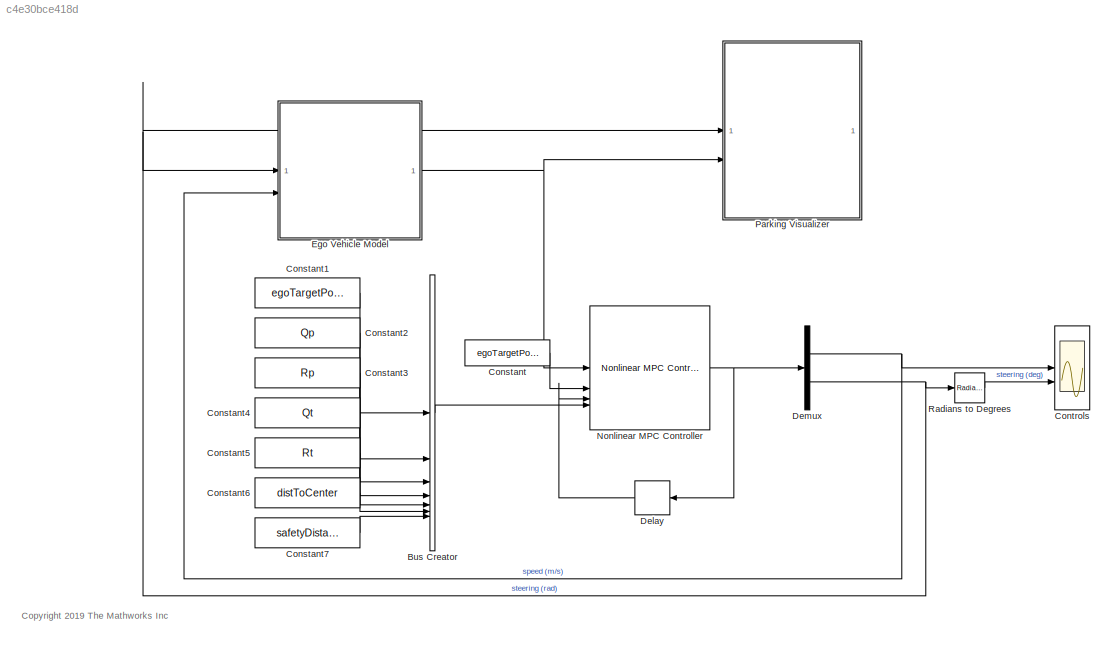
MODEL slx_c4e30bce418d
KIND model
CONFIG AbsTol = auto
CONFIG EnableMultiTasking = off
CONFIG FixedStep = auto
CONFIG MaxStep = auto
CONFIG MinStep = auto
CONFIG RelTol = 1e-3
CONFIG SampleTimeConstraint = Unconstrained
CONFIG SolverName = VariableStepAuto
CONFIG StartTime = 0.0
CONFIG StopTime = Duration
BLOCK [BusCreator] Bus Creator
  DisplayOption = bar
  InheritFromInputs = off
  Inputs = 7
  NonVirtualBus = on
  OutDataTypeStr = Bus: parasBusObject_1
BLOCK [Constant] Constant
  Value = egoTargetPose
  VectorParams1D = off
BLOCK [Constant] Constant1
  Value = egoTargetPose
  VectorParams1D = off
BLOCK [Constant] Constant2
  Value = Qp
  VectorParams1D = off
BLOCK [Constant] Constant3
  Value = Rp
  VectorParams1D = off
BLOCK [Constant] Constant4
  Value = Qt
  VectorParams1D = off
BLOCK [Constant] Constant5
  Value = Rt
  VectorParams1D = off
BLOCK [Constant] Constant6
  Value = distToCenter
  VectorParams1D = off
BLOCK [Constant] Constant7
  Value = safetyDistance
  VectorParams1D = off
BLOCK [Scope] Controls
  Floating = off
  NumInputPorts = 2
  ScopeSpecificationString = Simulink.scopes.TimeScopeBlockCfg('CurrentConfiguration', extmgr.ConfigurationSet(extmgr.Configuration('Core','General UI',true),extmgr.Configuration('Core','Source UI',true),extmgr.Configuration('Sources','WiredSimulink',true),extmgr.Configuration('Visuals','Time Domain',true,'SerializedDisplays',{struct('MinYLimReal','-2.35974','MaxYLimReal','1.23763','YLabelReal','','MinYLimMag','0.00000','MaxY...<+1976ch>
BLOCK [Delay] Delay
  DelayLength = 1
  InputPortMap = u0
BLOCK [Demux] Demux
  Outputs = [1 1]
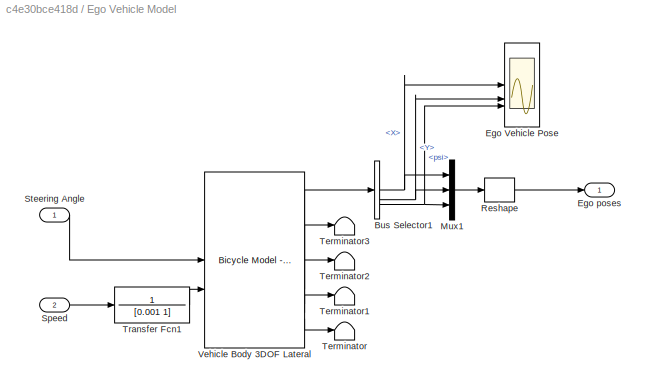
BLOCK [SubSystem] Ego Vehicle Model
BLOCK [BusSelector] Ego Vehicle Model/Bus Selector1
  OutputSignals = InertFrm.RearAxl.Disp.X,InertFrm.RearAxl.Disp.Y,InertFrm.Cg.Ang.psi
BLOCK [Scope] Ego Vehicle Model/Ego Vehicle Pose
  Floating = off
  NumInputPorts = 3
  ScopeSpecificationString = Simulink.scopes.TimeScopeBlockCfg('CurrentConfiguration', extmgr.ConfigurationSet(extmgr.Configuration('Core','General UI',true),extmgr.Configuration('Core','Source UI',true),extmgr.Configuration('Sources','WiredSimulink',true,'DataLoggingVariableName','ScopeData1'),extmgr.Configuration('Visuals','Time Domain',true,'SerializedDisplays',{struct('MinYLimReal','-2.41393','MaxYLimReal','8.04599','YLab...<+2757ch>
BLOCK [Outport] Ego Vehicle Model/Ego poses
BLOCK [Mux] Ego Vehicle Model/Mux1
  DisplayOption = bar
  Inputs = 3
BLOCK [Reshape] Ego Vehicle Model/Reshape
  OutputDimensionality = Customize
  OutputDimensions = [3,1]
BLOCK [Inport] Ego Vehicle Model/Speed
  Port = 2
BLOCK [Inport] Ego Vehicle Model/Steering Angle
BLOCK [Terminator] Ego Vehicle Model/Terminator
BLOCK [Terminator] Ego Vehicle Model/Terminator1
BLOCK [Terminator] Ego Vehicle Model/Terminator2
BLOCK [Terminator] Ego Vehicle Model/Terminator3
BLOCK [TransferFcn] Ego Vehicle Model/Transfer Fcn1
  Denominator = [0.001 1]
  Numerator = 1
BLOCK [Reference] Ego Vehicle Model/Vehicle Body 3DOF Lateral  REF=autolibshared/Bicycle Model - Velocity Input
  SourceBlock = autolibshared/Bicycle Model - Velocity Input
  SourceType = Vehicle Body 3DOF Lateral
BLOCK [Reference] Nonlinear MPC Controller  REF=mpclib/Nonlinear MPC Controller  (lib defined in mdl_ae329e0e0455)
  SCDEnableBlockLinearizationSpecification = on
  SourceBlock = mpclib/Nonlinear MPC Controller
  SourceType = NonlinearMPC
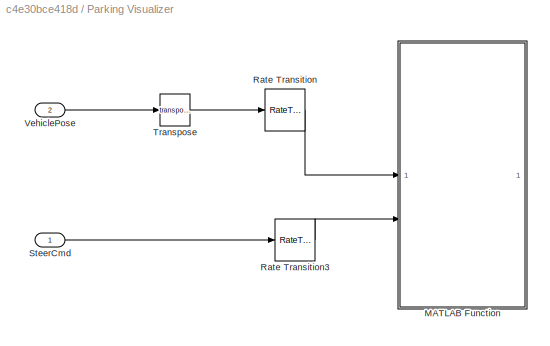
BLOCK [SubSystem] Parking Visualizer
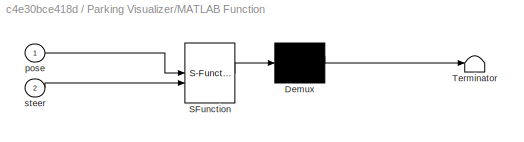
BLOCK [SubSystem] Parking Visualizer/MATLAB Function
  ErrorFcn = Stateflow.Translate.translate
  PermitHierarchicalResolution = ExplicitOnly
  SFBlockType = MATLAB Function
  TreatAsAtomicUnit = on
BLOCK [Demux] Parking Visualizer/MATLAB Function/ Demux 
  Outputs = 1
BLOCK [S-Function] Parking Visualizer/MATLAB Function/ SFunction 
  EnableBusSupport = off
  FunctionName = sf_sfun
  PortCounts = [2 1]
  SFcnIsStateOwnerBlock = off
  SFunctionDeploymentMode = off
  Tag = Stateflow S-Function 2
BLOCK [Terminator] Parking Visualizer/MATLAB Function/ Terminator 
BLOCK [Inport] Parking Visualizer/MATLAB Function/pose
BLOCK [Inport] Parking Visualizer/MATLAB Function/steer
  Port = 2
BLOCK [RateTransition] Parking Visualizer/Rate Transition
  OutPortSampleTime = Tv
BLOCK [RateTransition] Parking Visualizer/Rate Transition3
  OutPortSampleTime = Tv
BLOCK [Inport] Parking Visualizer/SteerCmd
BLOCK [Math] Parking Visualizer/Transpose
  Operator = transpose
BLOCK [Inport] Parking Visualizer/VehiclePose
  Port = 2
BLOCK [Reference] Radians to Degrees  REF=simulink_extras/Transformations/Radians
to Degrees
  SourceBlock = simulink_extras/Transformations/Radians\nto Degrees
  SourceType = RadiansToDegrees
ANNOTATION (root): <copyright redacted>
LINE Bus Creator:1 -> Nonlinear MPC Controller:4
LINE Constant1:1 -> Bus Creator:1
LINE Constant2:1 -> Bus Creator:2
LINE Constant3:1 -> Bus Creator:3
LINE Constant4:1 -> Bus Creator:4
LINE Constant5:1 -> Bus Creator:5
LINE Constant6:1 -> Bus Creator:6
LINE Constant7:1 -> Bus Creator:7
LINE Constant:1 -> Nonlinear MPC Controller:2
LINE Delay:1 -> Nonlinear MPC Controller:3
NET Demux:1 -> Controls:1, Ego Vehicle Model:2
NET Demux:2 -> Ego Vehicle Model:1, Parking Visualizer:1, Radians to Degrees:1
NET Ego Vehicle Model/Bus Selector1:1 -> Ego Vehicle Model/Ego Vehicle Pose:1, Ego Vehicle Model/Mux1:1
NET Ego Vehicle Model/Bus Selector1:2 -> Ego Vehicle Model/Ego Vehicle Pose:2, Ego Vehicle Model/Mux1:2
NET Ego Vehicle Model/Bus Selector1:3 -> Ego Vehicle Model/Ego Vehicle Pose:3, Ego Vehicle Model/Mux1:3
LINE Ego Vehicle Model/Mux1:1 -> Ego Vehicle Model/Reshape:1
LINE Ego Vehicle Model/Reshape:1 -> Ego Vehicle Model/Ego poses:1
LINE Ego Vehicle Model/Speed:1 -> Ego Vehicle Model/Transfer Fcn1:1
LINE Ego Vehicle Model/Steering Angle:1 -> Ego Vehicle Model/Vehicle Body 3DOF Lateral:1
LINE Ego Vehicle Model/Transfer Fcn1:1 -> Ego Vehicle Model/Vehicle Body 3DOF Lateral:2
LINE Ego Vehicle Model/Vehicle Body 3DOF Lateral:1 -> Ego Vehicle Model/Bus Selector1:1
LINE Ego Vehicle Model/Vehicle Body 3DOF Lateral:2 -> Ego Vehicle Model/Terminator3:1
LINE Ego Vehicle Model/Vehicle Body 3DOF Lateral:3 -> Ego Vehicle Model/Terminator2:1
LINE Ego Vehicle Model/Vehicle Body 3DOF Lateral:4 -> Ego Vehicle Model/Terminator1:1
LINE Ego Vehicle Model/Vehicle Body 3DOF Lateral:5 -> Ego Vehicle Model/Terminator:1
NET Ego Vehicle Model:1 -> Nonlinear MPC Controller:1, Parking Visualizer:2
NET Nonlinear MPC Controller:1 -> Delay:1, Demux:1
LINE Parking Visualizer/Rate Transition3:1 -> Parking Visualizer/MATLAB Function:2
LINE Parking Visualizer/Rate Transition:1 -> Parking Visualizer/MATLAB Function:1
LINE Parking Visualizer/SteerCmd:1 -> Parking Visualizer/Rate Transition3:1
LINE Parking Visualizer/Transpose:1 -> Parking Visualizer/Rate Transition:1
LINE Parking Visualizer/VehiclePose:1 -> Parking Visualizer/Transpose:1
LINE Radians to Degrees:1 -> Controls:2
note: NET lines group one-source signal fan-out (src -> all destinations, sorted); 1:1 wires keep LINE
CHART Parking Visualizer/MATLAB Function states=1 transitions=1
  STATE_LABEL 'eML_blk_kernel()'
  STATE_LABEL "SCRIPT:\nfunction visualizeParking(pose, steer)\n\n%visualizePath Display simulation results.\n\ncoder.extrinsic('helperSLVisualizeParking');\n\nhelperSLVisualizeParking(pose, steer);"
CHART  states=0 transitions=0
